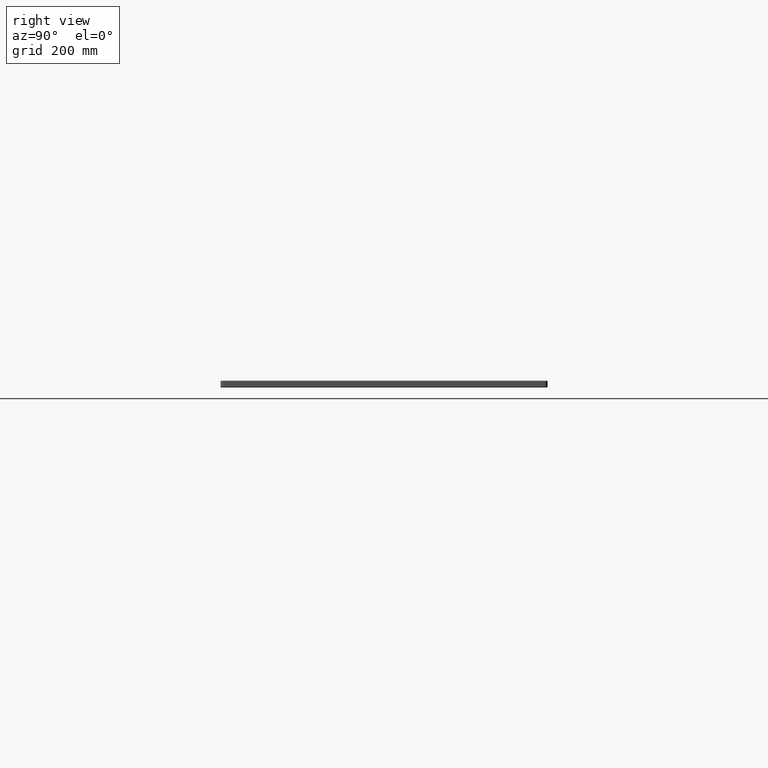
[diagram: clean part render]
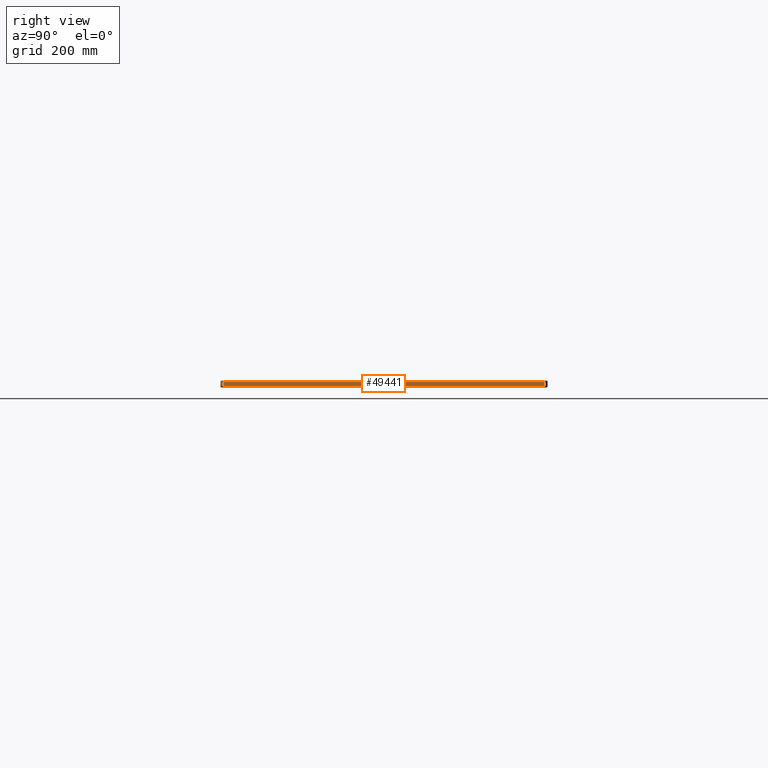
[diagram: same view with one face highlighted and labeled with its STEP entity id]
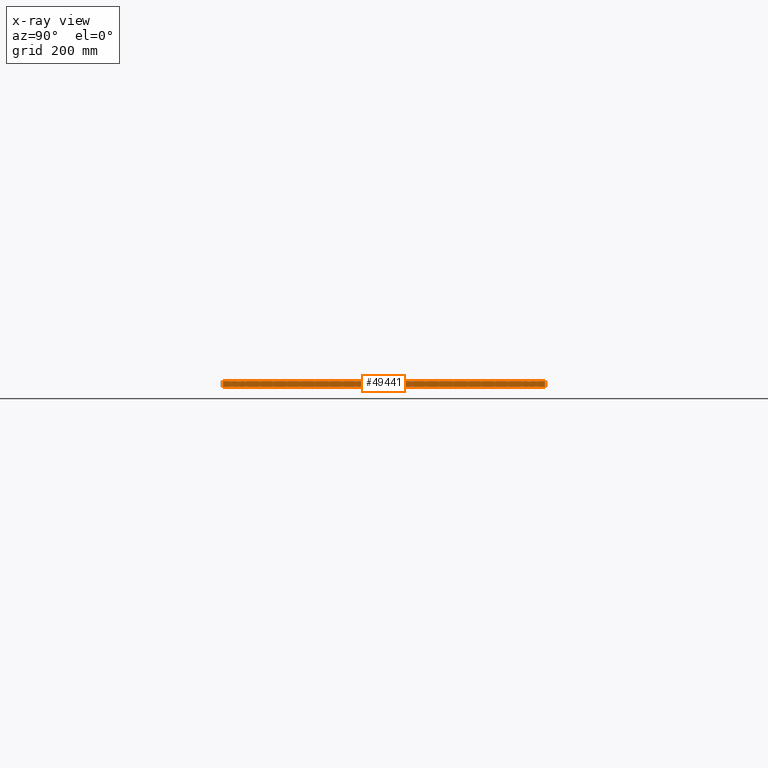
[diagram: x-ray of the same camera — body ghosted, the highlighted face saturated]
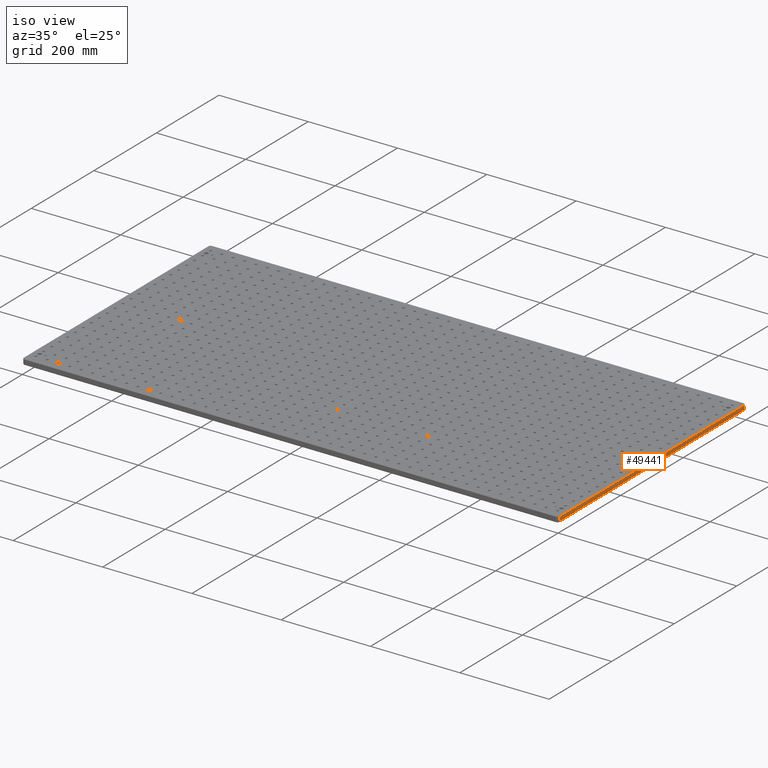
[diagram: same view with one face highlighted and labeled with its STEP entity id]
A machine part, right view. The second image highlights one B-rep face of the part: STEP entity #49441.
The next image is the same camera in x-ray: the body ghosted, the highlighted face saturated — about 0% of this face is hidden behind the body in this view.
A second angle (iso view) of the same face is appended — the face is thin or edge-on in the first view.
In plain terms, the highlighted planar face has unit normal (1, 0, 0).
Its self-contained STEP definition (entity closure, byte-faithful):
#105 = CARTESIAN_POINT ( 'NONE',  ( 1200.000000000000000, 0.0000000000000000000, -13.00000000000000000 ) ) ;
#1031 = CARTESIAN_POINT ( 'NONE',  ( 1200.000000000000000, 594.9999999999998900, -2.000000000000000000 ) ) ;
#4384 = LINE ( 'NONE', #9164, #65455 ) ;
#4957 = FACE_OUTER_BOUND ( 'NONE', #49006, .T. ) ;
#5359 = DIRECTION ( 'NONE',  ( -0.0000000000000000000, 1.000000000000000000, 0.0000000000000000000 ) ) ;
#6657 = CARTESIAN_POINT ( 'NONE',  ( 1200.000000000000000, 594.9999999999998900, -11.00000000000000000 ) ) ;
#9164 = CARTESIAN_POINT ( 'NONE',  ( 1200.000000000000000, 5.000000000000004400, -2.000000000000000000 ) ) ;
#11429 = CARTESIAN_POINT ( 'NONE',  ( 1200.000000000000000, 0.0000000000000000000, -11.00000000000000000 ) ) ;
#12113 = DIRECTION ( 'NONE',  ( 0.0000000000000000000, 0.0000000000000000000, 1.000000000000000000 ) ) ;
#19660 = CARTESIAN_POINT ( 'NONE',  ( 1200.000000000000000, 4.999999999999999100, -11.00000000000000000 ) ) ;
#22035 = LINE ( 'NONE', #29099, #79029 ) ;
#29099 = CARTESIAN_POINT ( 'NONE',  ( 1200.000000000000000, 4.999999999999999100, -13.00000000000000000 ) ) ;
#30832 = VERTEX_POINT ( 'NONE', #1031 ) ;
#35839 = ORIENTED_EDGE ( 'NONE', *, *, #52231, .T. ) ;
#37898 = ORIENTED_EDGE ( 'NONE', *, *, #39766, .T. ) ;
#38008 = AXIS2_PLACEMENT_3D ( 'NONE', #105, #56849, #43934 ) ;
#38246 = VERTEX_POINT ( 'NONE', #6657 ) ;
#38440 = PLANE ( 'NONE',  #38008 ) ;
#39570 = EDGE_CURVE ( 'NONE', #55416, #38246, #72503, .T. ) ;
#39766 = EDGE_CURVE ( 'NONE', #30832, #59274, #4384, .T. ) ;
#43534 = CARTESIAN_POINT ( 'NONE',  ( 1200.000000000000000, 594.9999999999998900, -13.00000000000000000 ) ) ;
#43749 = EDGE_CURVE ( 'NONE', #38246, #30832, #78751, .T. ) ;
#43934 = DIRECTION ( 'NONE',  ( 0.0000000000000000000, 0.0000000000000000000, -1.000000000000000000 ) ) ;
#44082 = CARTESIAN_POINT ( 'NONE',  ( 1200.000000000000000, 4.999999999999999100, -2.000000000000000000 ) ) ;
#49006 = EDGE_LOOP ( 'NONE', ( #80868, #37898, #35839, #71778 ) ) ;
#49441 = ADVANCED_FACE ( 'NONE', ( #4957 ), #38440, .T. ) ;
#52231 = EDGE_CURVE ( 'NONE', #59274, #55416, #22035, .T. ) ;
#55416 = VERTEX_POINT ( 'NONE', #19660 ) ;
#56849 = DIRECTION ( 'NONE',  ( 1.000000000000000000, 0.0000000000000000000, 0.0000000000000000000 ) ) ;
#59274 = VERTEX_POINT ( 'NONE', #44082 ) ;
#65455 = VECTOR ( 'NONE', #78701, 1000.000000000000000 ) ;
#68943 = VECTOR ( 'NONE', #12113, 1000.000000000000000 ) ;
#71778 = ORIENTED_EDGE ( 'NONE', *, *, #39570, .T. ) ;
#72503 = LINE ( 'NONE', #11429, #73918 ) ;
#73052 = DIRECTION ( 'NONE',  ( 0.0000000000000000000, -0.0000000000000000000, -1.000000000000000000 ) ) ;
#73918 = VECTOR ( 'NONE', #5359, 1000.000000000000000 ) ;
#78701 = DIRECTION ( 'NONE',  ( -0.0000000000000000000, -1.000000000000000000, 0.0000000000000000000 ) ) ;
#78751 = LINE ( 'NONE', #43534, #68943 ) ;
#79029 = VECTOR ( 'NONE', #73052, 1000.000000000000000 ) ;
#80868 = ORIENTED_EDGE ( 'NONE', *, *, #43749, .T. ) ;